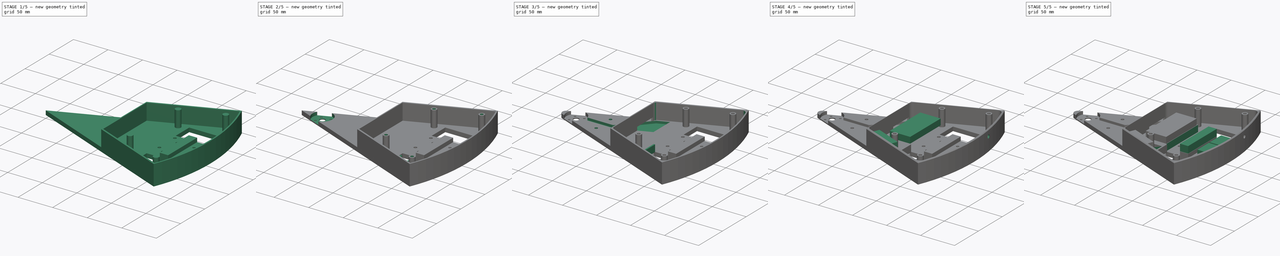
[diagram: build sequence overview — one tinted view per stage of 5, left to right]
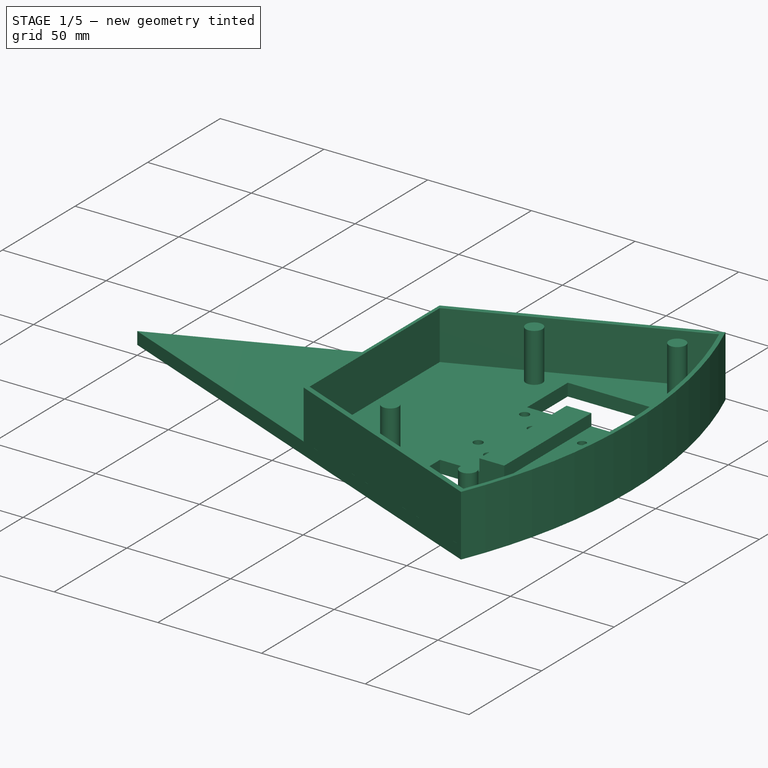
[diagram: stage 1 of 5 — iso view after this stage's code; geometry added in this stage tinted green]
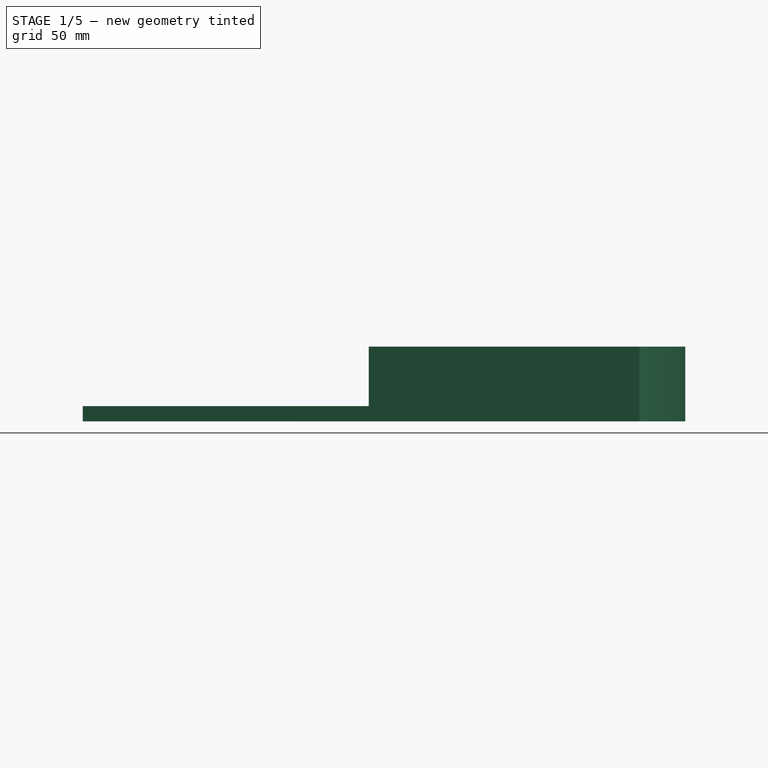
[diagram: stage 1 of 5 — front view after this stage's code; geometry added in this stage tinted green]
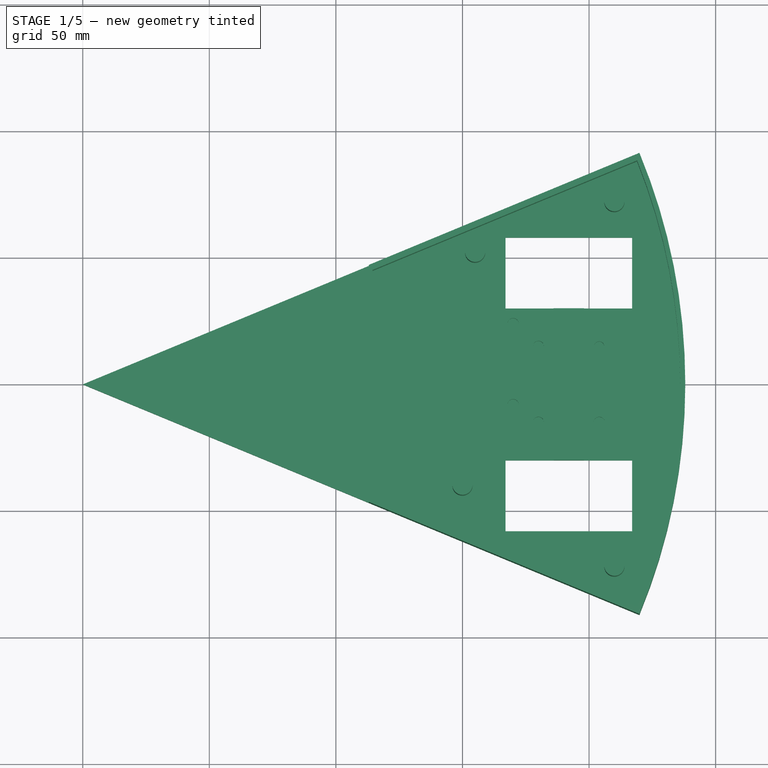
[diagram: stage 1 of 5 — top view after this stage's code; geometry added in this stage tinted green]
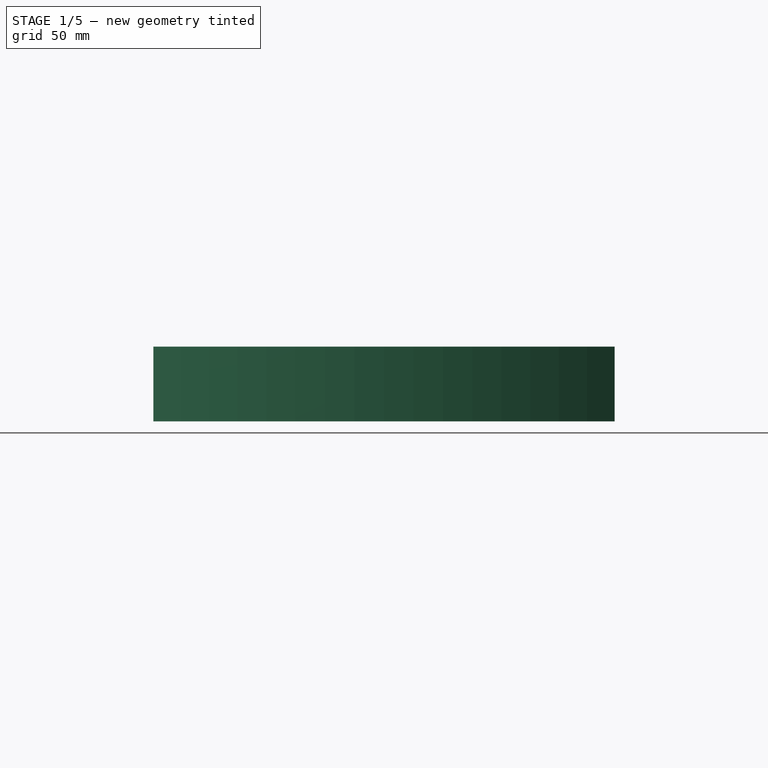
[diagram: stage 1 of 5 — right view after this stage's code; geometry added in this stage tinted green]
FCSTD DOCUMENT  (FreeCAD 0.21R33668 +26 (Git))
Label: base
License: All rights reserved
LicenseURL: https://en.wikipedia.org/wiki/All_rights_reserved
objects: Sketcher::SketchObject×13, Part::Box×7, PartDesign::Pocket×7, PartDesign::Pad×6, PartDesign::Fillet×2, Part::Cylinder×1, PartDesign::Chamfer×1, PartDesign::Body×1, Part::Cut×1
note: 55 computed .brp shape members not serialized (recipe doc carries the construction recipe); baked Part::Feature solids carry a one-line shape summary decoded from their .brp

FEATURE [Sketcher::SketchObject] Sketch
  FullyConstrained = true
  MapMode = 5
  Support = -> [XY_Plane]
  sketch-geometry (11):
    g0: LineSegment StartX=0 StartY=0 StartZ=0 EndX=219.883 EndY=91.0787 EndZ=0
    g1: LineSegment StartX=0 StartY=0 StartZ=0 EndX=219.883 EndY=-91.0787 EndZ=0
    g2: ArcOfCircle CenterX=0 CenterY=0 CenterZ=0 NormalX=0 NormalY=0 NormalZ=1 AngleXU=0 Radius=238 StartAngle=5.89049 EndAngle=6.67588
    g3: LineSegment StartX=167 StartY=58 StartZ=0 EndX=217 EndY=58 EndZ=0
    g4: LineSegment StartX=217 StartY=58 StartZ=0 EndX=217 EndY=30 EndZ=0
    g5: LineSegment StartX=217 StartY=30 StartZ=0 EndX=167 EndY=30 EndZ=0
    g6: LineSegment StartX=167 StartY=30 StartZ=0 EndX=167 EndY=58 EndZ=0
    g7: LineSegment StartX=167 StartY=-30 StartZ=0 EndX=217 EndY=-30 EndZ=0
    g8: LineSegment StartX=217 StartY=-30 StartZ=0 EndX=217 EndY=-58 EndZ=0
    g9: LineSegment StartX=217 StartY=-58 StartZ=0 EndX=167 EndY=-58 EndZ=0
    g10: LineSegment StartX=167 StartY=-58 StartZ=0 EndX=167 EndY=-30 EndZ=0
  constraints (31):
    c: Coincident(g2,g-1)
    c: Coincident(g2,g0)
    c: Radius(g2) = 238
    c: Coincident(g1,g2)
    c: Angle(g-1,g0) = 0.392699
    c: Angle(g1,g-1) = 0.392699
    c: Coincident(g3,g4)
    c: Coincident(g4,g5)
    c: Coincident(g5,g6)
    c: Coincident(g6,g3)
    c: Horizontal(g3)
    c: Horizontal(g5)
    c: Vertical(g4)
    c: Vertical(g6)
    c: DistanceX(g3,g3) = 50
    c: DistanceY(g4,g4) = 28
    c: DistanceX(g-1,g5) = 167
    c: Coincident(g7,g8)
    c: Coincident(g8,g9)
    c: Coincident(g9,g10)
    c: Coincident(g10,g7)
    c: Horizontal(g7)
    c: Horizontal(g9)
    c: Vertical(g8)
    c: Vertical(g10)
    c: DistanceX(g9,g9) = 50
    c: DistanceY(g8,g8) = 28
    c: Symmetric(g4,g7,g-1)
    c: DistanceY(g7,g4) = 60
    c: Coincident(g0,g2)
    c: Coincident(g1,g0)
FEATURE [PartDesign::Pad] Pad  label="base001"
  Direction = (0,0,1)
  Length = 6
  Length2 = 10
  Profile = -> Sketch
  ReferenceAxis = -> Sketch [N_Axis]
  Type = 0
FEATURE [Sketcher::SketchObject] Sketch001
  FullyConstrained = true
  MapMode = 5
  Placement = pos=(0,0,6) rot=(0,0,1;0rad)
  Support = -> [Pad]
  sketch-geometry (4):
    g0: LineSegment StartX=186 StartY=30 StartZ=0 EndX=198 EndY=30 EndZ=0
    g1: LineSegment StartX=198 StartY=30 StartZ=0 EndX=198 EndY=-30 EndZ=0
    g2: LineSegment StartX=198 StartY=-30 StartZ=0 EndX=186 EndY=-30 EndZ=0
    g3: LineSegment StartX=186 StartY=-30 StartZ=0 EndX=186 EndY=30 EndZ=0
  constraints (12):
    c: Coincident(g0,g1)
    c: Coincident(g1,g2)
    c: Coincident(g2,g3)
    c: Coincident(g3,g0)
    c: Horizontal(g0)
    c: Horizontal(g2)
    c: Vertical(g1)
    c: Vertical(g3)
    c: DistanceX(g0,g0) = 12
    c: DistanceY(g-1,g0) = 30
    c: DistanceX(g-1,g0) = 186
    c: DistanceY(g1,g1) = 60
FEATURE [PartDesign::Pad] Pad001  label="Base motores"
  BaseFeature = -> Pad
  Direction = (0,0,1)
  Length = 5.75
  Length2 = 10
  Profile = -> Sketch001
  ReferenceAxis = -> Sketch001 [N_Axis]
  Type = 0
FEATURE [Sketcher::SketchObject] Sketch002
  FullyConstrained = true
  MapMode = 5
  Placement = pos=(0,0,6) rot=(0,0,1;0rad)
  Support = -> [Pad001]
  sketch-geometry (6):
    g0: Circle CenterX=180 CenterY=15 CenterZ=0 NormalX=0 NormalY=0 NormalZ=1 AngleXU=0 Radius=2.2
    g1: Circle CenterX=180 CenterY=-15 CenterZ=0 NormalX=0 NormalY=0 NormalZ=1 AngleXU=0 Radius=2.2
    g2: Circle CenterX=204 CenterY=15 CenterZ=0 NormalX=0 NormalY=0 NormalZ=1 AngleXU=0 Radius=2
    g3: Circle CenterX=204 CenterY=-15 CenterZ=0 NormalX=0 NormalY=0 NormalZ=1 AngleXU=0 Radius=2.2
    g4: Circle CenterX=170 CenterY=24 CenterZ=0 NormalX=0 NormalY=0 NormalZ=1 AngleXU=0 Radius=2.2
    g5: Circle CenterX=170 CenterY=-8 CenterZ=0 NormalX=0 NormalY=0 NormalZ=1 AngleXU=0 Radius=2.2
  constraints (16):
    c: DistanceY(g-1,g0) = 15
    c: DistanceX(g-1,g0) = 180
    c: Diameter(g0) = 4.4
    c: DistanceX(g0,g2) = 24
    c: DistanceY(g0,g2) = 0
    c: Diameter(g2) = 4
    c: Diameter(g3) = 4.4
    c: Diameter(g1) = 4.4
    c: Symmetric(g0,g1,g-1)
    c: Symmetric(g2,g3,g-1)
    c: DistanceY(g-1,g4) = 24
    c: DistanceX(g-1,g4) = 170
    c: Diameter(g4) = 4.4
    c: Diameter(g5) = 4.4
    c: DistanceY(g5,g4) = 32
    c: DistanceX(g5,g4) = 0
FEATURE [PartDesign::Pocket] Pocket  label="Agujeros insertos componentes"
  BaseFeature = -> Pad001
  Direction = (0,0,-1)
  Length = 5.6
  Length2 = 5
  Profile = -> Sketch002
  ReferenceAxis = -> Sketch002 [N_Axis]
  Type = 0
FEATURE [Sketcher::SketchObject] Sketch004
  FullyConstrained = true
  MapMode = 5
  Placement = pos=(0,0,6) rot=(0,0,1;0rad)
  Support = -> [Pocket]
  sketch-geometry (8):
    g0: LineSegment StartX=113 StartY=46.8 StartZ=0 EndX=219.885 EndY=91.0734 EndZ=0
    g1: LineSegment StartX=113 StartY=46.8 StartZ=0 EndX=113 EndY=-46.8 EndZ=0
    g2: LineSegment StartX=113 StartY=-46.8 StartZ=0 EndX=219.885 EndY=-91.0734 EndZ=0
    g3: ArcOfCircle CenterX=0 CenterY=0 CenterZ=0 NormalX=0 NormalY=0 NormalZ=1 AngleXU=0 Radius=238 StartAngle=5.89051 EndAngle=6.67586
    g4: LineSegment StartX=218.953 StartY=88.0658 StartZ=0 EndX=114.5 EndY=44.8 EndZ=0
    g5: LineSegment StartX=114.5 StartY=44.8 StartZ=0 EndX=114.5 EndY=-44.8 EndZ=0
    g6: LineSegment StartX=114.5 StartY=-44.8 StartZ=0 EndX=218.953 EndY=-88.0658 EndZ=0
    g7: ArcOfCircle CenterX=0 CenterY=0 CenterZ=0 NormalX=0 NormalY=0 NormalZ=1 AngleXU=0 Radius=236 StartAngle=5.90077 EndAngle=6.6656
  constraints (22):
    c: Coincident(g0,g1)
    c: Coincident(g1,g2)
    c: Angle(g-1,g0) = 0.392699
    c: Angle(g2,g-1) = 0.392699
    c: DistanceY(g1,g1) = 93.6
    c: Coincident(g3,g-1)
    c: Coincident(g3,g0)
    c: Coincident(g3,g2)
    c: Radius(g3) = 238
    c: Symmetric(g0,g1,g-1)
    c: DistanceX(g3,g1) = 113
    c: Coincident(g4,g5)
    c: Coincident(g5,g6)
    c: Coincident(g7,g3)
    c: Coincident(g7,g4)
    c: Coincident(g6,g7)
    c: Radius(g7) = 236
    c: Angle(g-1,g4) = 0.392699
    c: Angle(g6,g-1) = 0.392699
    c: DistanceX(g0,g4) = 1.5
    c: Symmetric(g4,g5,g-1)
    c: DistanceY(g4,g0) = 2
FEATURE [PartDesign::Pad] Pad003  label="Paredes"
  BaseFeature = -> Pocket
  Direction = (0,0,1)
  Length = 23.5
  Length2 = 10
  Profile = -> Sketch004
  ReferenceAxis = -> Sketch004 [N_Axis]
  Type = 0
FEATURE [Sketcher::SketchObject] Sketch006
  FullyConstrained = true
  MapMode = 5
  Placement = pos=(0,0,6) rot=(0,0,1;0rad)
  Support = -> [Pad003]
  sketch-geometry (4):
    g0: Circle CenterX=150 CenterY=-40 CenterZ=0 NormalX=0 NormalY=0 NormalZ=1 AngleXU=0 Radius=4
    g1: Circle CenterX=155 CenterY=52 CenterZ=0 NormalX=0 NormalY=0 NormalZ=1 AngleXU=0 Radius=4
    g2: Circle CenterX=210 CenterY=72 CenterZ=0 NormalX=0 NormalY=0 NormalZ=1 AngleXU=0 Radius=4
    g3: Circle CenterX=210 CenterY=-72 CenterZ=0 NormalX=0 NormalY=0 NormalZ=1 AngleXU=0 Radius=4
  constraints (12):
    c: Diameter(g0) = 8
    c: DistanceX(g-1,g0) = 150
    c: DistanceY(g0,g-1) = 40
    c: DistanceX(g-1,g1) = 155
    c: DistanceY(g-1,g1) = 52
    c: Diameter(g1) = 8
    c: DistanceY(g3,g-1) = 72
    c: DistanceX(g-1,g3) = 210
    c: Diameter(g3) = 8
    c: DistanceY(g-1,g2) = 72
    c: DistanceX(g-1,g2) = 210
    c: Diameter(g2) = 8
FEATURE [PartDesign::Pad] Pad004  label="Columnas tornillos tapa"
  BaseFeature = -> Pad003
  Direction = (0,0,1)
  Length = 23.5
  Length2 = 10
  Profile = -> Sketch006
  ReferenceAxis = -> Sketch006 [N_Axis]
  Type = 0
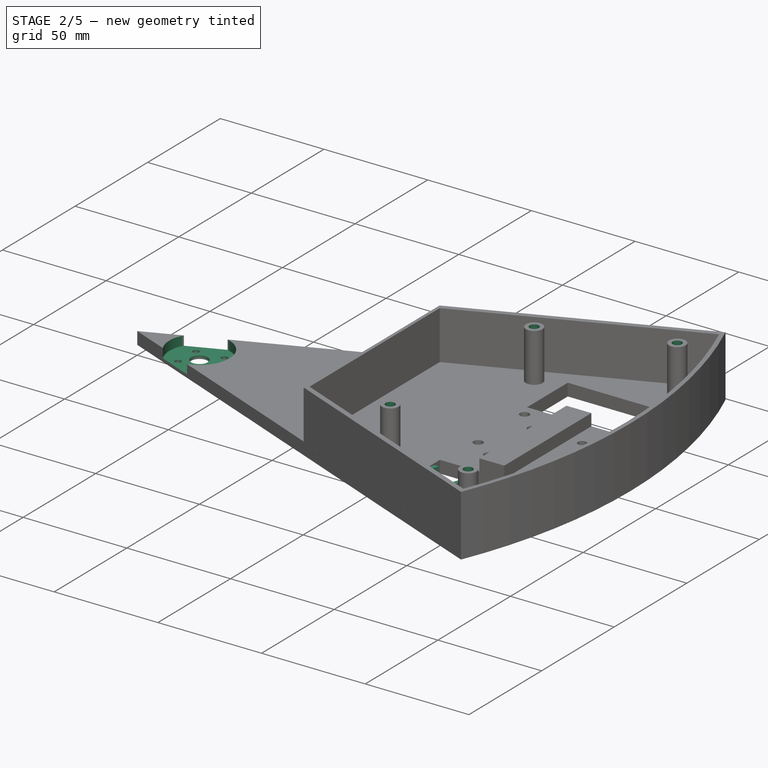
[diagram: stage 2 of 5 — iso view after this stage's code; geometry added in this stage tinted green]
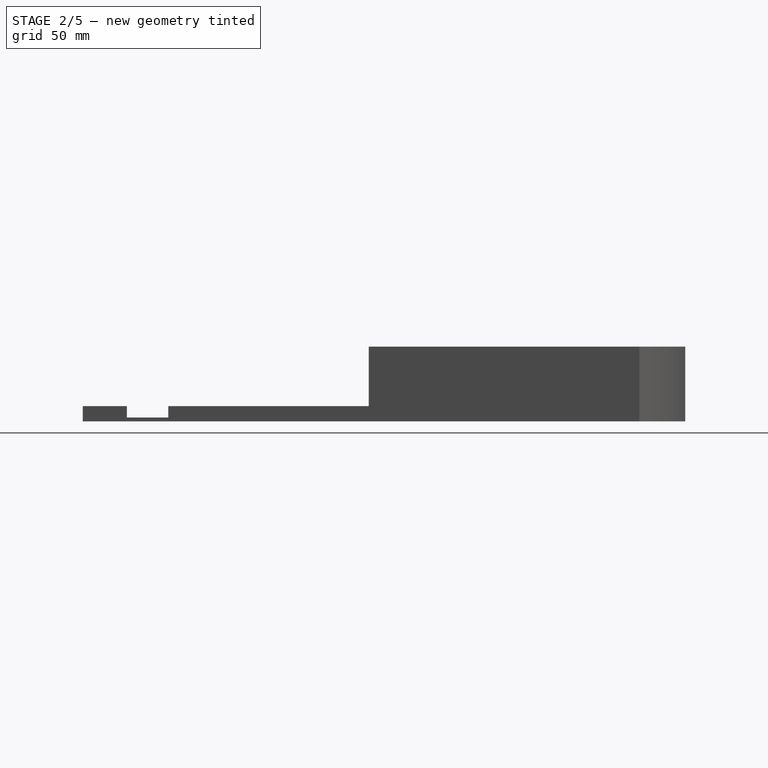
[diagram: stage 2 of 5 — front view after this stage's code; geometry added in this stage tinted green]
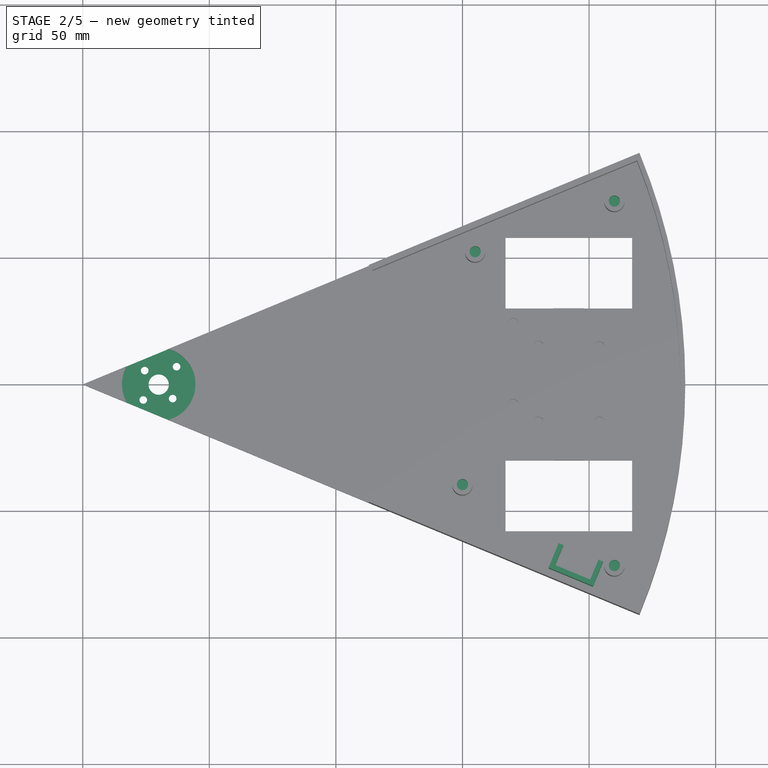
[diagram: stage 2 of 5 — top view after this stage's code; geometry added in this stage tinted green]
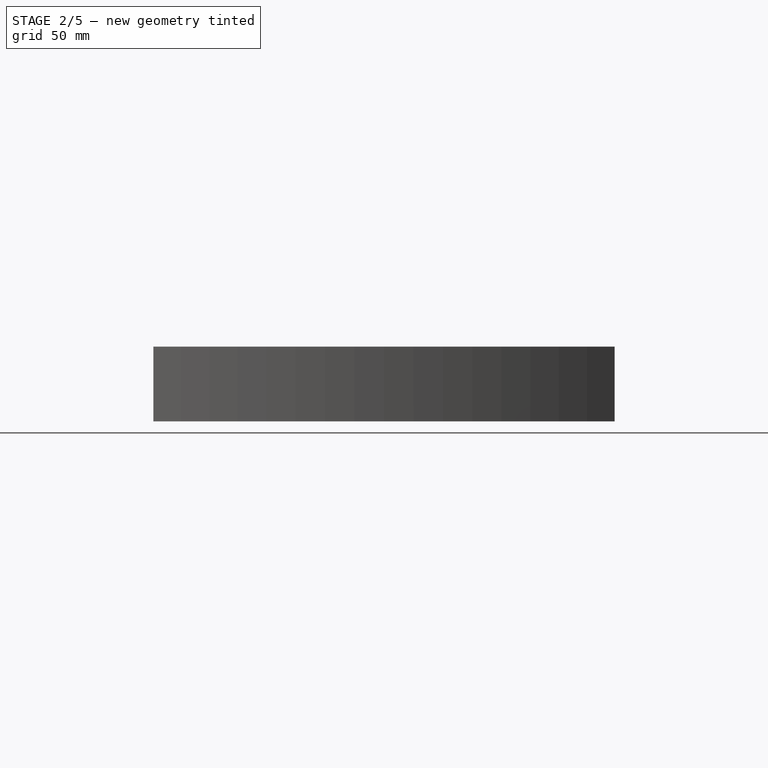
[diagram: stage 2 of 5 — right view after this stage's code; geometry added in this stage tinted green]
FEATURE [Sketcher::SketchObject] Sketch007
  FullyConstrained = true
  MapMode = 5
  Placement = pos=(0,0,29.5) rot=(0,0,1;0rad)
  Support = -> [Pad004]
  sketch-geometry (5):
    g0: Circle CenterX=150 CenterY=-40 CenterZ=0 NormalX=0 NormalY=0 NormalZ=1 AngleXU=0 Radius=2.2
    g1: Circle CenterX=155 CenterY=52 CenterZ=0 NormalX=0 NormalY=0 NormalZ=1 AngleXU=0 Radius=2.2
    g2: Circle CenterX=210 CenterY=72 CenterZ=0 NormalX=0 NormalY=0 NormalZ=1 AngleXU=0 Radius=2.2
    g3: Circle CenterX=210 CenterY=-72 CenterZ=0 NormalX=0 NormalY=0 NormalZ=1 AngleXU=0 Radius=2.2
    g4: Circle CenterX=202 CenterY=0 CenterZ=0 NormalX=0 NormalY=0 NormalZ=1 AngleXU=0 Radius=2.2
  constraints (15):
    c: DistanceX(g-1,g0) = 150
    c: DistanceY(g0,g-1) = 40
    c: Diameter(g0) = 4.4
    c: DistanceY(g-1,g1) = 52
    c: DistanceX(g-1,g1) = 155
    c: Diameter(g1) = 4.4
    c: DistanceY(g3,g-1) = 72
    c: DistanceX(g-1,g3) = 210
    c: Diameter(g3) = 4.4
    c: DistanceX(g-1,g2) = 210
    c: DistanceY(g-1,g2) = 72
    c: Diameter(g2) = 4.4
    c: PointOnObject(g4,g-1)
    c: DistanceX(g-1,g4) = 202
    c: Diameter(g4) = 4.4
FEATURE [PartDesign::Pocket] Pocket002  label="Agujeros insertos tapa"
  BaseFeature = -> Pad004
  Direction = (0,0,-1)
  Length = 10
  Length2 = 5
  Profile = -> Sketch007
  ReferenceAxis = -> Sketch007 [N_Axis]
  Type = 0
FEATURE [Sketcher::SketchObject] Sketch008
  FullyConstrained = true
  MapMode = 5
  Placement = pos=(0,0,6) rot=(0,0,1;0rad)
  Support = -> [Pocket002]
  sketch-geometry (5):
    g0: Circle CenterX=24.48 CenterY=5.52 CenterZ=0 NormalX=0 NormalY=0 NormalZ=1 AngleXU=0 Radius=1.5
    g1: GeomPoint X=30 Y=0 Z=0
    g2: Circle CenterX=37.07 CenterY=7.07 CenterZ=0 NormalX=0 NormalY=0 NormalZ=1 AngleXU=0 Radius=1.5
    g3: Circle CenterX=35.52 CenterY=-5.52 CenterZ=0 NormalX=0 NormalY=0 NormalZ=1 AngleXU=0 Radius=1.5
    g4: Circle CenterX=23.93 CenterY=-6.07 CenterZ=0 NormalX=0 NormalY=0 NormalZ=1 AngleXU=0 Radius=1.5
  constraints (14):
    c: Diameter(g0) = 3
    c: PointOnObject(g1,g-1)
    c: DistanceX(g-1,g1) = 30
    c: Diameter(g2) = 3
    c: Diameter(g4) = 3
    c: Diameter(g3) = 3
    c: DistanceX(g1,g2) = 7.07
    c: DistanceX(g4,g1) = 6.07
    c: DistanceY(g4,g1) = 6.07
    c: DistanceY(g1,g2) = 7.07
    c: DistanceY(g3,g1) = 5.52
    c: DistanceX(g1,g3) = 5.52
    c: DistanceY(g1,g0) = 5.52
    c: DistanceX(g0,g1) = 5.52
FEATURE [PartDesign::Pocket] Pocket003  label="Agujeros motor brushless"
  BaseFeature = -> Pocket002
  Direction = (0,0,-1)
  Length = 5
  Length2 = 5
  Profile = -> Sketch008
  ReferenceAxis = -> Sketch008 [N_Axis]
  Type = 2
FEATURE [Sketcher::SketchObject] Sketch011
  FullyConstrained = true
  MapMode = 5
  Placement = pos=(0,0,6) rot=(0,0,1;0rad)
  Support = -> [Pocket003]
  sketch-geometry (8):
    g0: LineSegment StartX=188 StartY=-63 StartZ=0 EndX=189.848 EndY=-63.7654 EndZ=0
    g1: LineSegment StartX=189.848 StartY=-63.7654 StartZ=0 EndX=186.595 EndY=-71.6183 EndZ=0
    g2: LineSegment StartX=186.595 StartY=-71.6183 StartZ=0 EndX=200.453 EndY=-77.3586 EndZ=0
    g3: LineSegment StartX=200.453 StartY=-77.3586 StartZ=0 EndX=203.706 EndY=-69.5056 EndZ=0
    g4: LineSegment StartX=203.706 StartY=-69.5056 StartZ=0 EndX=205.554 EndY=-70.271 EndZ=0
    g5: LineSegment StartX=205.554 StartY=-70.271 StartZ=0 EndX=201.536 EndY=-79.9717 EndZ=0
    g6: LineSegment StartX=201.536 StartY=-79.9717 StartZ=0 EndX=183.982 EndY=-72.7007 EndZ=0
    g7: LineSegment StartX=183.982 StartY=-72.7007 StartZ=0 EndX=188 EndY=-63 EndZ=0
  constraints (24):
    c: Coincident(g0,g1)
    c: Coincident(g1,g2)
    c: Coincident(g2,g3)
    c: Coincident(g3,g4)
    c: Coincident(g4,g5)
    c: Coincident(g5,g6)
    c: Coincident(g6,g7)
    c: Coincident(g7,g0)
    c: Perpendicular(g0,g7)
    c: Perpendicular(g1,g0)
    c: Perpendicular(g2,g1)
    c: Perpendicular(g3,g2)
    c: Perpendicular(g4,g3)
    c: Perpendicular(g5,g4)
    c: Perpendicular(g6,g5)
    c: Distance(g4) = 2
    c: Distance(g3) = 8.5
    c: Distance(g7) = 10.5
    c: Angle(g-1,g6) = 2.74889
    c: DistanceX(g-1,g0) = 188
    c: DistanceY(g0,g-1) = 63
    c: Distance(g1) = 8.5
    c: Distance(g0) = 2
    c: Distance(g2) = 15
FEATURE [PartDesign::Pad] Pad005  label="Interruptor"
  BaseFeature = -> Pocket003
  Direction = (0,0,1)
  Length = 16
  Length2 = 10
  Profile = -> Sketch011
  ReferenceAxis = -> Sketch011 [N_Axis]
  Type = 0
FEATURE [Sketcher::SketchObject] Sketch013
  FullyConstrained = true
  MapMode = 5
  Placement = pos=(0,0,6) rot=(0,0,1;0rad)
  sketch-geometry (1):
    g0: Circle CenterX=30 CenterY=0 CenterZ=0 NormalX=0 NormalY=0 NormalZ=1 AngleXU=0 Radius=14.5
  constraints (3):
    c: PointOnObject(g0,g-1)
    c: DistanceX(g-1,g0) = 30
    c: Diameter(g0) = 29
FEATURE [PartDesign::Pocket] Pocket007  label="Espacio motor brushless"
  BaseFeature = -> Pad005
  Direction = (0,0,-1)
  Length = 4.5
  Length2 = 5
  Profile = -> Sketch013
  ReferenceAxis = -> Sketch013 [N_Axis]
  Type = 0
FEATURE [Sketcher::SketchObject] Sketch014
  FullyConstrained = true
  MapMode = 5
  Placement = pos=(0,0,1.5) rot=(0,0,1;0rad)
  Support = -> [Pocket007]
  sketch-geometry (1):
    g0: Circle CenterX=30 CenterY=0 CenterZ=0 NormalX=0 NormalY=0 NormalZ=1 AngleXU=0 Radius=4
  constraints (3):
    c: PointOnObject(g0,g-1)
    c: DistanceX(g-1,g0) = 30
    c: Diameter(g0) = 8
FEATURE [PartDesign::Pocket] Pocket008  label="Agujero eje motor brushless"
  BaseFeature = -> Pocket007
  Direction = (0,0,-1)
  Length = 3
  Length2 = 5
  Profile = -> Sketch014
  ReferenceAxis = -> Sketch014 [N_Axis]
  Type = 0
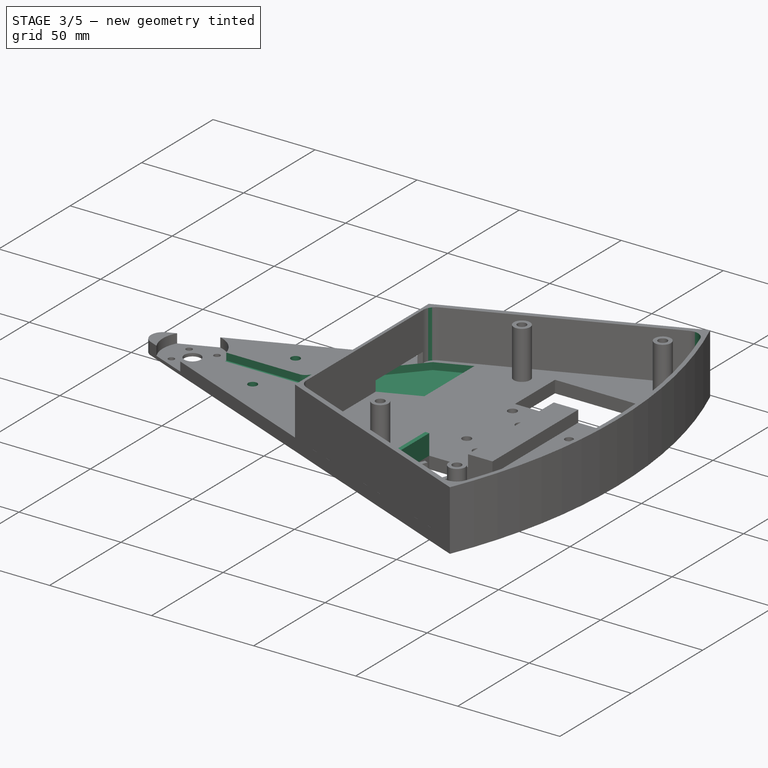
[diagram: stage 3 of 5 — iso view after this stage's code; geometry added in this stage tinted green]
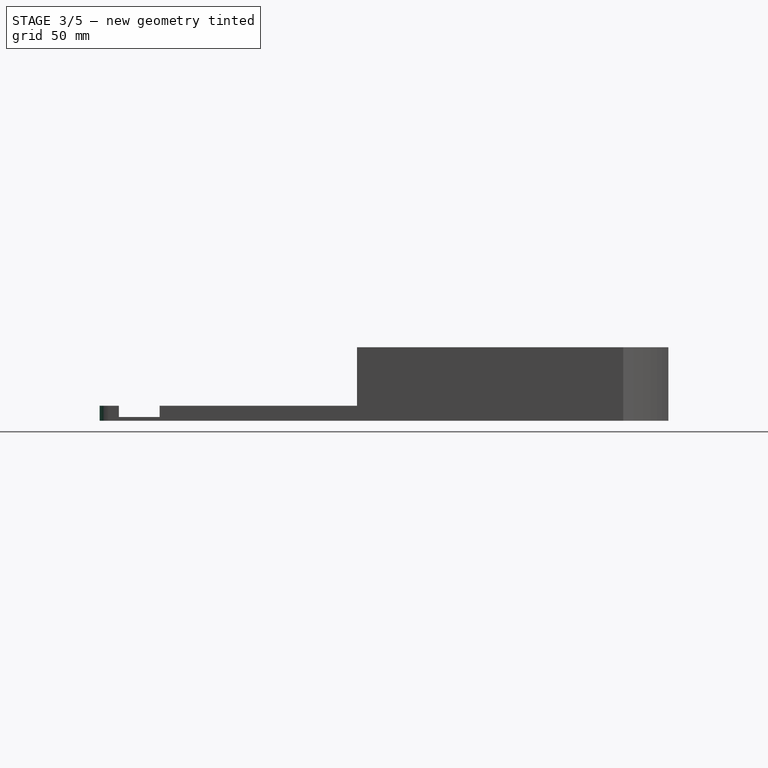
[diagram: stage 3 of 5 — front view after this stage's code; geometry added in this stage tinted green]
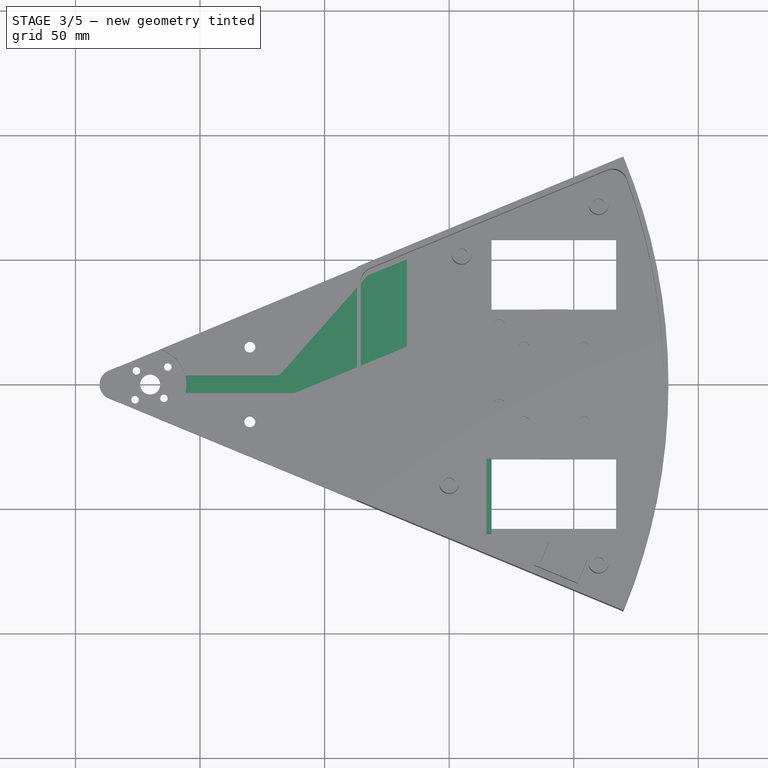
[diagram: stage 3 of 5 — top view after this stage's code; geometry added in this stage tinted green]
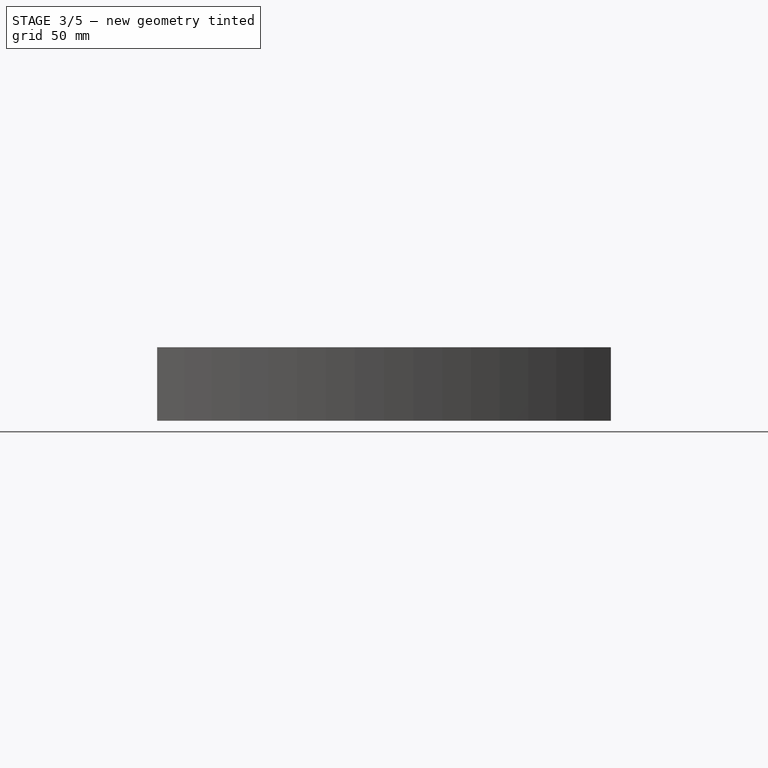
[diagram: stage 3 of 5 — right view after this stage's code; geometry added in this stage tinted green]
FEATURE [Sketcher::SketchObject] Sketch015
  FullyConstrained = true
  MapMode = 5
  Placement = pos=(0,0,6) rot=(0,0,1;0rad)
  Support = -> [Pocket008]
  sketch-geometry (2):
    g0: Circle CenterX=70 CenterY=15 CenterZ=0 NormalX=0 NormalY=0 NormalZ=1 AngleXU=0 Radius=2.2
    g1: Circle CenterX=70 CenterY=-15 CenterZ=0 NormalX=0 NormalY=0 NormalZ=1 AngleXU=0 Radius=2.2
  constraints (5):
    c: DistanceX(g-1,g1) = 70
    c: DistanceY(g1,g-1) = 15
    c: Diameter(g1) = 4.4
    c: Diameter(g0) = 4.4
    c: Symmetric(g0,g1,g-1)
FEATURE [PartDesign::Pocket] Pocket009  label="Agujeros auxiliares"
  BaseFeature = -> Pocket008
  Direction = (0,0,-1)
  Length = 10
  Length2 = 5
  Profile = -> Sketch015
  ReferenceAxis = -> Sketch015 [N_Axis]
  Type = 0
FEATURE [Sketcher::SketchObject] Sketch016
  FullyConstrained = false
  MapMode = 5
  Placement = pos=(0,0,6) rot=(0,0,1;0rad)
  Support = -> [Pocket009]
  sketch-geometry (4):
    g0: LineSegment StartX=165 StartY=-30 StartZ=0 EndX=167 EndY=-30 EndZ=0
    g1: LineSegment StartX=167 StartY=-30 StartZ=0 EndX=167 EndY=-60 EndZ=0
    g2: LineSegment StartX=165 StartY=-60 StartZ=0 EndX=165 EndY=-30 EndZ=0
    g3: LineSegment StartX=167 StartY=-60 StartZ=0 EndX=165 EndY=-60 EndZ=0
  constraints (8):
    c: Coincident(g0,g1)
    c: Coincident(g2,g0)
    c: Vertical(g1)
    c: Vertical(g2)
    c: DistanceY(g1,g1) = 30
    c: Horizontal(g3)
    c: Coincident(g2,g3)
    c: Coincident(g3,g1)
FEATURE [PartDesign::Pad] Pad006  label="Protecciones ruedas"
  BaseFeature = -> Pocket009
  Direction = (0,0,1)
  Length = 10
  Length2 = 10
  Profile = -> Sketch016
  ReferenceAxis = -> Sketch016 [N_Axis]
  Type = 0
FEATURE [Sketcher::SketchObject] Sketch017
  FullyConstrained = true
  MapMode = 5
  Placement = pos=(0,0,6) rot=(0,0,1;0rad)
  Support = -> [Pad006]
  sketch-geometry (8):
    g0: LineSegment StartX=88 StartY=-3.5 StartZ=0 EndX=133 EndY=15.1396 EndZ=0
    g1: LineSegment StartX=133 StartY=15.1396 StartZ=0 EndX=133 EndY=50.1396 EndZ=0
    g2: LineSegment StartX=133 StartY=50.1396 StartZ=0 EndX=117.147 EndY=43.573 EndZ=0
    g3: LineSegment StartX=88 StartY=-3.5 StartZ=0 EndX=40 EndY=-3.5 EndZ=0
    g4: LineSegment StartX=40 StartY=-3.5 StartZ=0 EndX=40 EndY=3.5 EndZ=0
    g5: LineSegment StartX=83 StartY=4.85425 StartZ=0 EndX=117.147 EndY=43.573 EndZ=0
    g6: LineSegment StartX=40 StartY=3.5 StartZ=0 EndX=80 EndY=3.5 EndZ=0
    g7: ArcOfCircle CenterX=80 CenterY=7.5 CenterZ=0 NormalX=0 NormalY=0 NormalZ=1 AngleXU=0 Radius=4 StartAngle=4.71239 EndAngle=5.56045
  constraints (23):
    c: Coincident(g0,g1)
    c: Vertical(g1)
    c: Coincident(g1,g2)
    c: DistanceX(g-1,g0) = 88
    c: DistanceY(g0,g-1) = 3.5
    c: Angle(g2,g-1) = 2.74889
    c: Coincident(g0,g3)
    c: Horizontal(g3)
    c: Coincident(g3,g4)
    c: Vertical(g4)
    c: Coincident(g5,g2)
    c: DistanceY(g4,g4) = 7
    c: DistanceX(g-1,g3) = 40
    c: DistanceX(g-1,g0) = 133
    c: Angle(g0,g-1) = 2.74889
    c: DistanceX(g5,g0) = 5
    c: DistanceY(g1,g1) = 35
    c: Coincident(g6,g4)
    c: Horizontal(g6)
    c: Tangent(g7,g6) = -1.5708
    c: Tangent(g7,g5) = -1.5708
    c: DistanceX(g6,g6) = 40
    c: Radius(g7) = 4
FEATURE [PartDesign::Pocket] Pocket010  label="Pasacables"
  BaseFeature = -> Pad006
  Direction = (0,0,-1)
  Length = 3.5
  Length2 = 5
  Profile = -> Sketch017
  ReferenceAxis = -> Sketch017 [N_Axis]
  Type = 4
FEATURE [PartDesign::Fillet] Fillet
  Base = -> Pocket010 [Edge164,Edge163,Edge167,Edge166]
  BaseFeature = -> Pocket010
  Radius = 6
  SupportTransform = false
  UseAllEdges = false
FEATURE [PartDesign::Fillet] Fillet001
  Base = -> Fillet [Edge204]
  BaseFeature = -> Fillet
  Radius = 6
  SupportTransform = false
  UseAllEdges = false
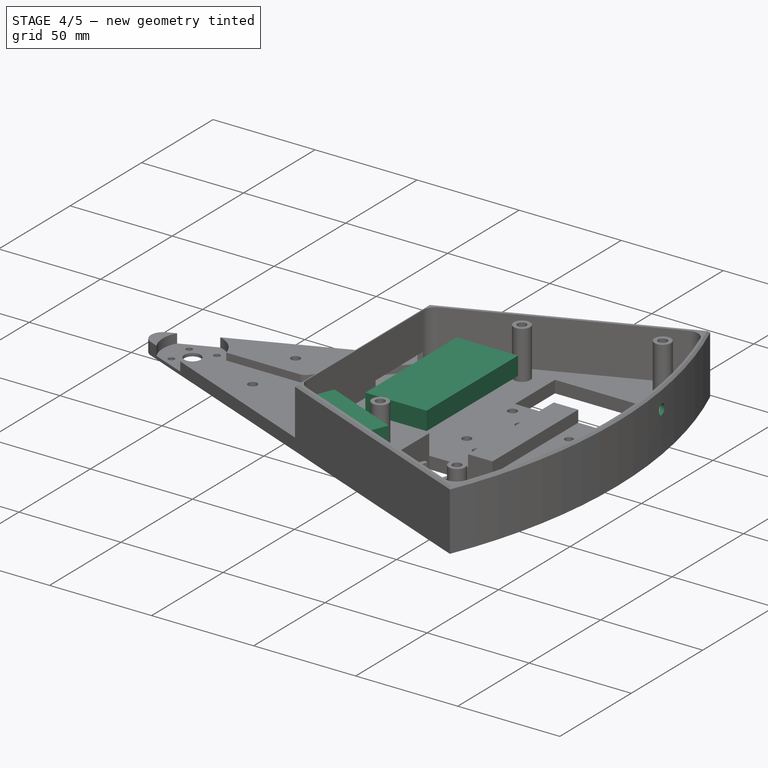
[diagram: stage 4 of 5 — iso view after this stage's code; geometry added in this stage tinted green]
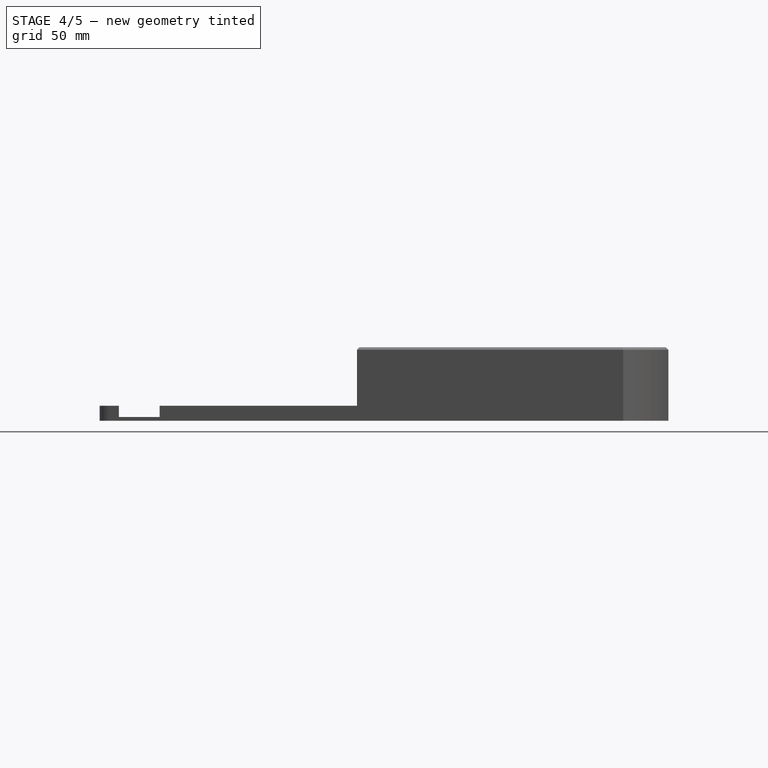
[diagram: stage 4 of 5 — front view after this stage's code; geometry added in this stage tinted green]
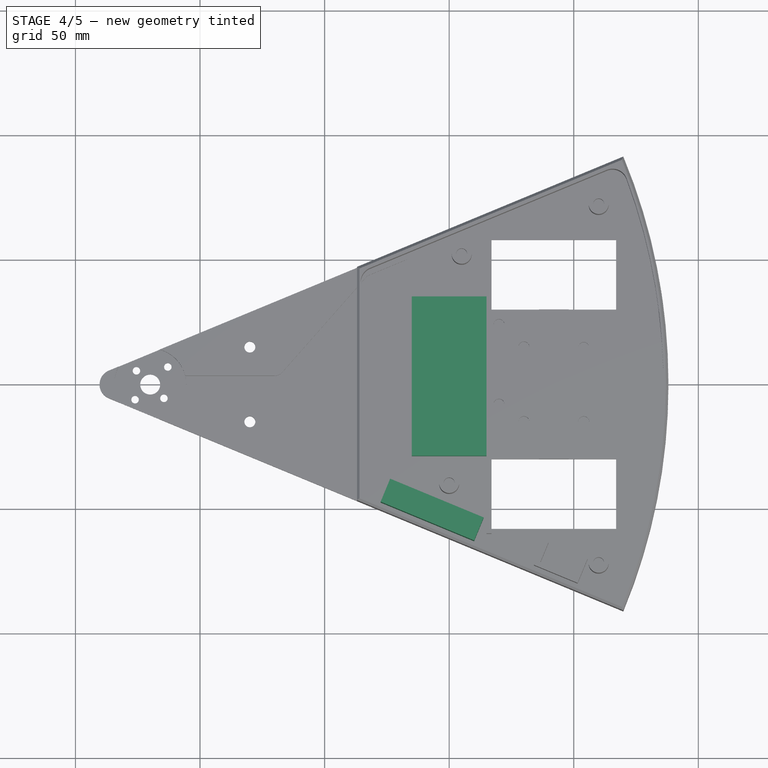
[diagram: stage 4 of 5 — top view after this stage's code; geometry added in this stage tinted green]
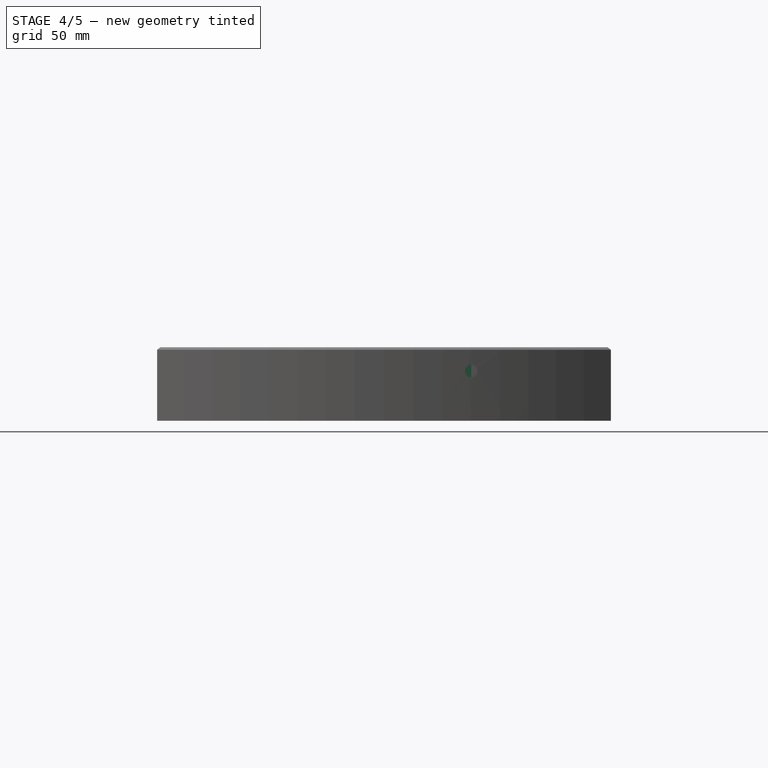
[diagram: stage 4 of 5 — right view after this stage's code; geometry added in this stage tinted green]
FEATURE [Part::Box] Box005  label="battery"
  AttacherType = Attacher::AttachEngine3D
  Height = 9
  Length = 64
  Placement = pos=(165,-29,16) rot=(0,0,1;1.5708rad)
  Width = 30
FEATURE [Part::Box] Box006  label="rx"
  AttacherType = Attacher::AttachEngine3D
  Height = 21.6
  Length = 10
  Placement = pos=(160,-63,6) rot=(0,0,1;1.1781rad)
  Width = 40.6
FEATURE [Part::Cylinder] Cylinder  label="LED"
  Angle = 360
  AttacherType = Attacher::AttachEngine3D
  FirstAngle = 0
  Height = 14
  Placement = pos=(224,35,20) rot=(0,1,0;1.5708rad)
  Radius = 2.5
  SecondAngle = 0
FEATURE [PartDesign::Chamfer] Chamfer
  Angle = 45
  Base = -> Fillet001 [Edge142,Edge147,Edge164,Edge92]
  BaseFeature = -> Fillet001
  ChamferType = 0
  FlipDirection = false
  Size = 1
  Size2 = 1
  SupportTransform = false
  UseAllEdges = false
FEATURE [PartDesign::Body] Body  label="Chasis"
  Group = -> [Sketch,Pad,Sketch001,Pad001,Sketch002,Pocket,Sketch004,Pad003,Sketch006,Pad004,Sketch007,Pocket002,Sketch008,Pocket003,Sketch011,Pad005,Sketch013,Pocket007,Sketch014,Pocket008,Sketch015,Pocket009,Sketch016,Pad006,Sketch017,Pocket010,Fillet,Fillet001,Chamfer]
  Origin = -> Origin
  Tip = -> Chamfer
FEATURE [Part::Cut] Cut
  Base = -> Body
  Tool = -> Cylinder
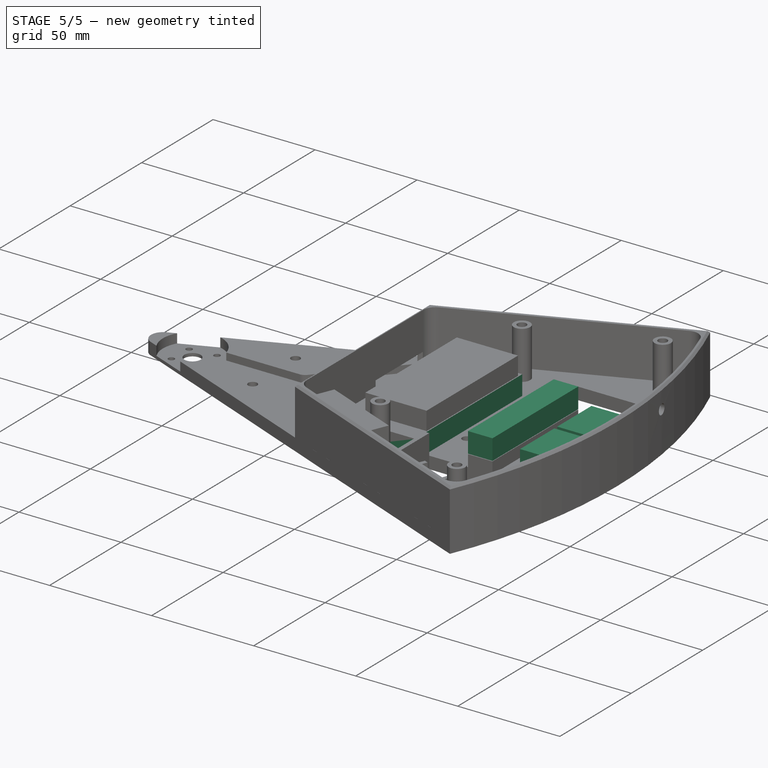
[diagram: stage 5 of 5 — iso view after this stage's code; geometry added in this stage tinted green]
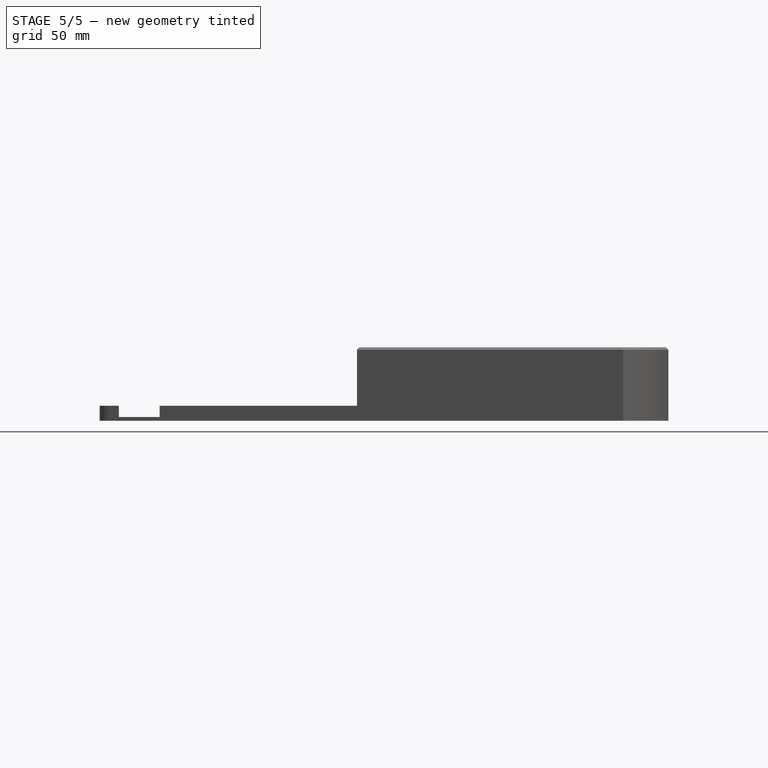
[diagram: stage 5 of 5 — front view after this stage's code; geometry added in this stage tinted green]
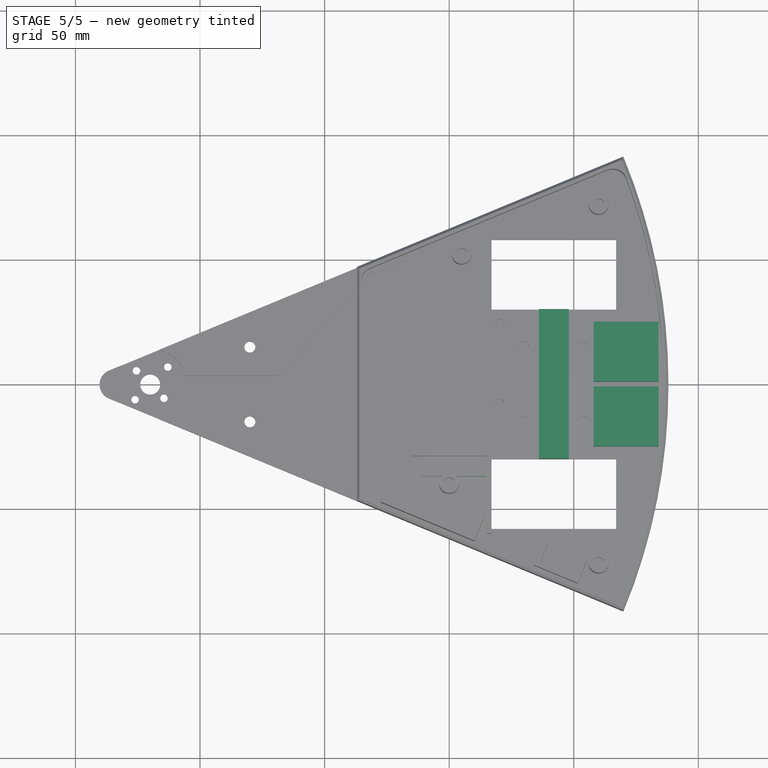
[diagram: stage 5 of 5 — top view after this stage's code; geometry added in this stage tinted green]
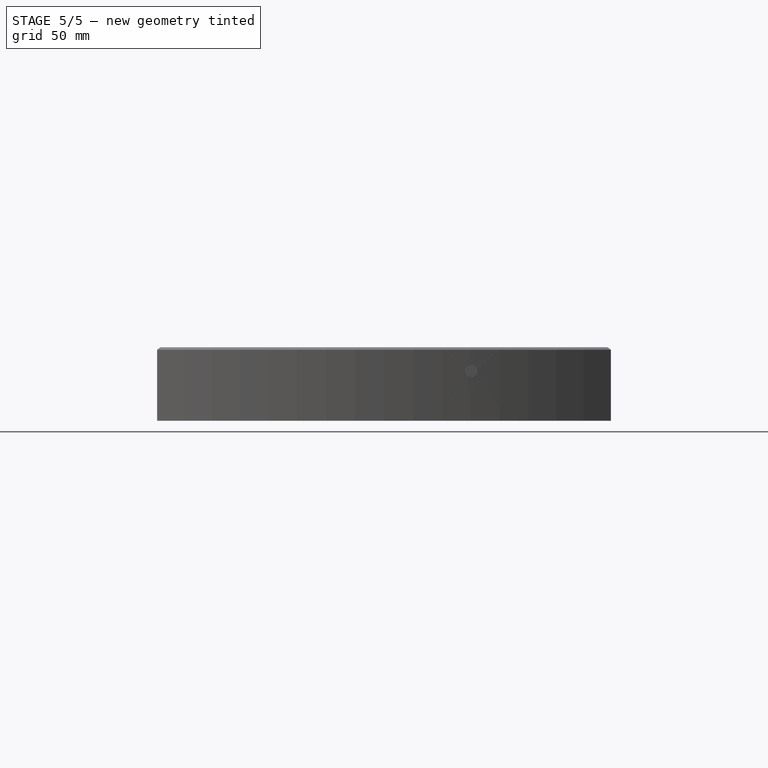
[diagram: stage 5 of 5 — right view after this stage's code; geometry added in this stage tinted green]
FEATURE [Part::Box] Box  label="motor_1"
  AttacherType = Attacher::AttachEngine3D
  Height = 10
  Length = 12
  Placement = pos=(186,0,12) rot=(0,0,1;0rad)
  Width = 30
FEATURE [Part::Box] Box001  label="motor_2"
  AttacherType = Attacher::AttachEngine3D
  Height = 10
  Length = 12
  Placement = pos=(186,-30,12) rot=(0,0,1;0rad)
  Width = 30
FEATURE [Part::Box] Box002  label="esc_2"
  AttacherType = Attacher::AttachEngine3D
  Height = 12
  Length = 26
  Placement = pos=(208,-25,6) rot=(0,0,1;0rad)
  Width = 24
FEATURE [Part::Box] Box003  label="esc_1"
  AttacherType = Attacher::AttachEngine3D
  Height = 12
  Length = 26
  Placement = pos=(208,1,6) rot=(0,0,1;0rad)
  Width = 24
FEATURE [Part::Box] Box004  label="esc_3"
  AttacherType = Attacher::AttachEngine3D
  Height = 9.6
  Length = 75
  Placement = pos=(165,-37,6) rot=(0,0,1;1.5708rad)
  Width = 26
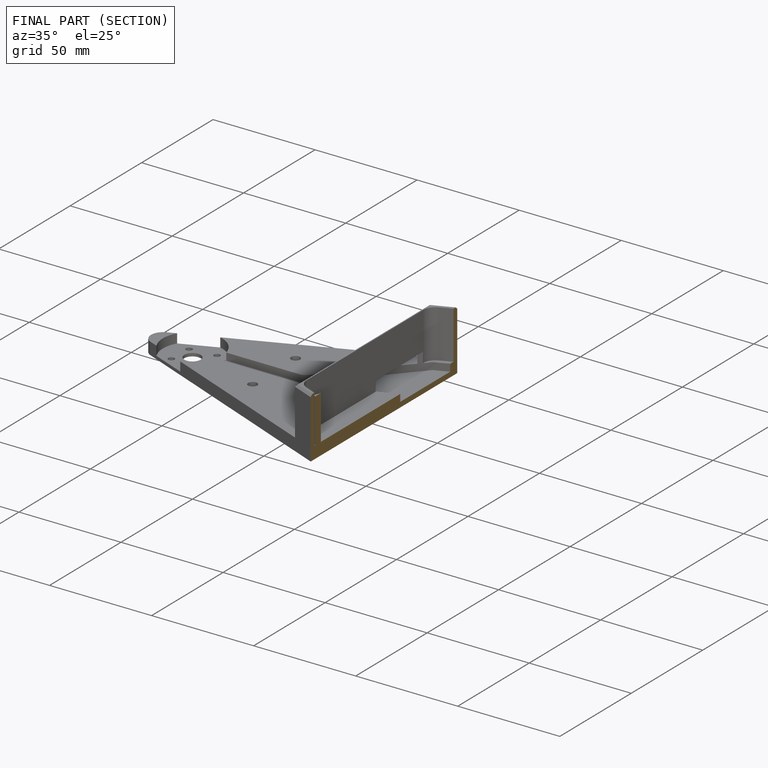
[diagram: finished part — half-section view (interior)]
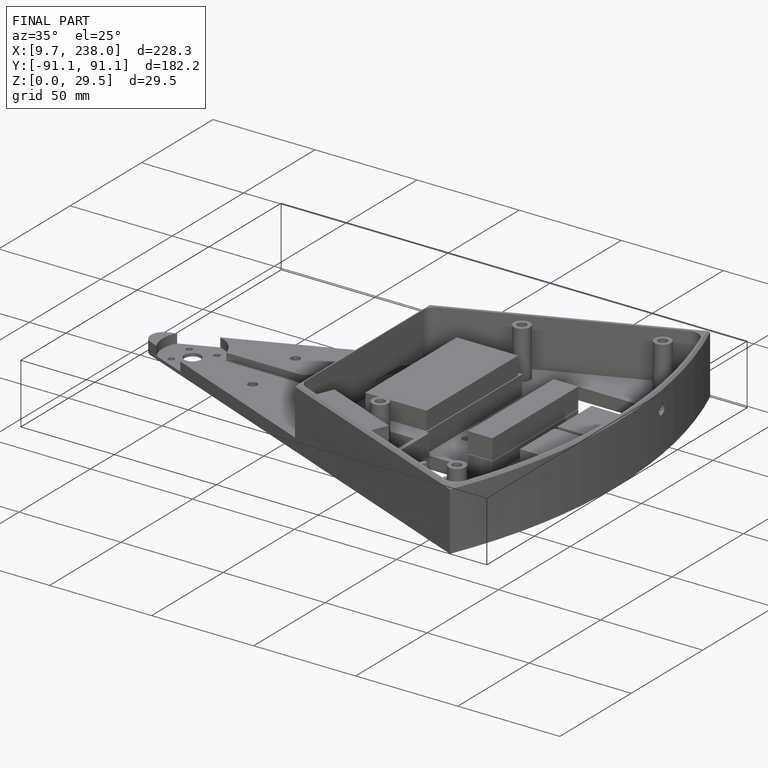
[diagram: finished part — iso view with bounding-box wireframe]
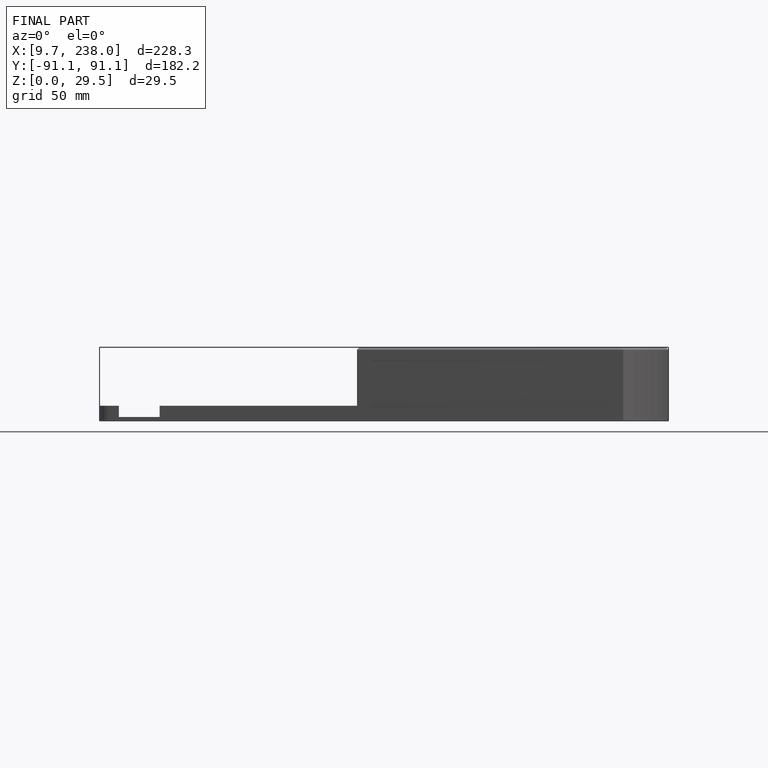
[diagram: finished part — front view with bounding-box wireframe]
